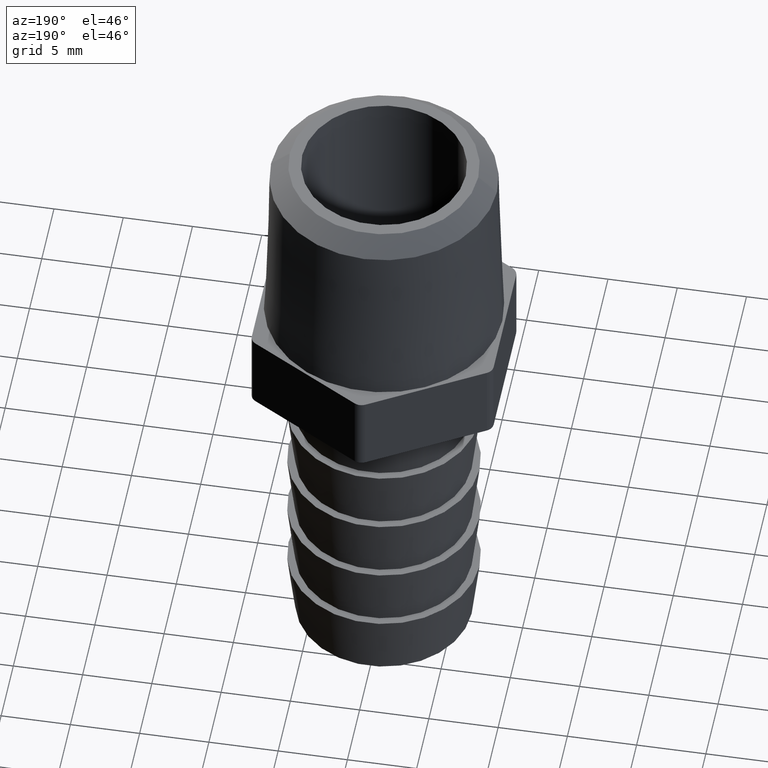
[diagram: clean part render]
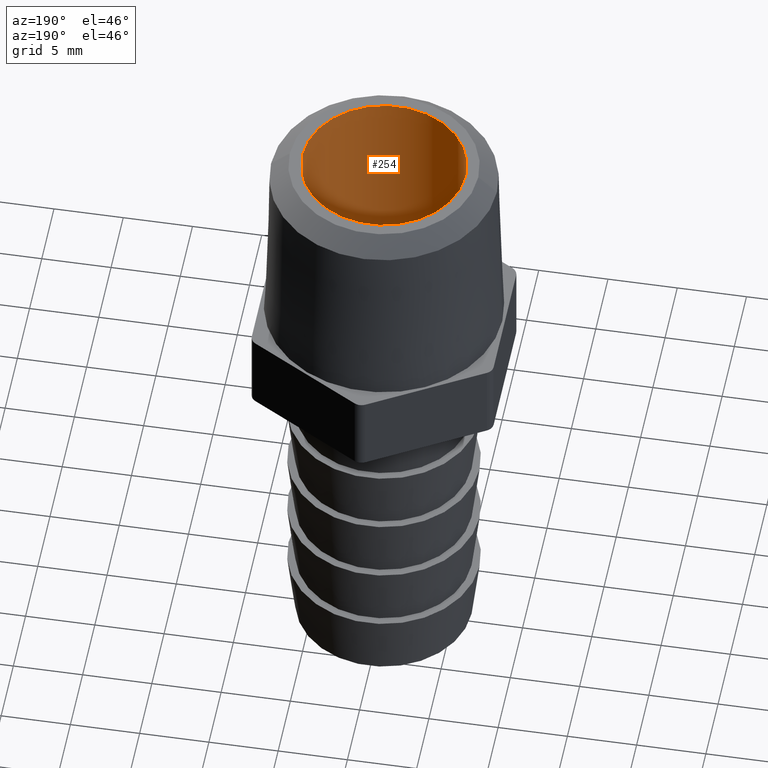
[diagram: same view with one face highlighted and labeled with its STEP entity id]
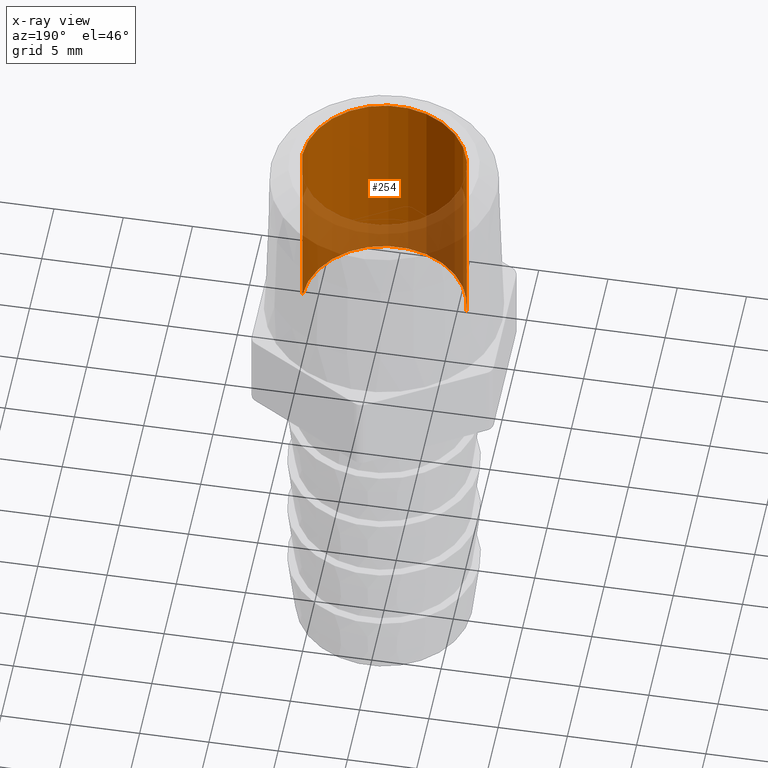
[diagram: x-ray of the same camera — body ghosted, the highlighted face saturated]
A machine part, auxiliary view. The second image highlights one B-rep face of the part: STEP entity #254.
The next image is the same camera in x-ray: the body ghosted, the highlighted face saturated — about 33% of this face is hidden behind the body in this view.
In plain terms, the highlighted cylindrical surface (partial cylindrical patch) has radius 5.9055 mm, axis along (-0, -0, 1).
Its self-contained STEP definition (entity closure, byte-faithful):
#28 = AXIS2_PLACEMENT_3D ( 'NONE', #1160, #626, #80 ) ;
#54 = CYLINDRICAL_SURFACE ( 'NONE', #677, 0.2325000000000000100 ) ;
#80 = DIRECTION ( 'NONE',  ( 1.000000000000000000, 0.0000000000000000000, 0.0000000000000000000 ) ) ;
#83 = FACE_OUTER_BOUND ( 'NONE', #288, .T. ) ;
#93 = ORIENTED_EDGE ( 'NONE', *, *, #258, .T. ) ;
#96 = CARTESIAN_POINT ( 'NONE',  ( -0.2325000000000000100, 2.847303808017596700E-017, 0.1159999999999999400 ) ) ;
#108 = CARTESIAN_POINT ( 'NONE',  ( 0.2325000000000000100, 0.0000000000000000000, -0.5416093065034893700 ) ) ;
#215 = CARTESIAN_POINT ( 'NONE',  ( 0.2325000000000000100, 0.0000000000000000000, 0.6819999999999999400 ) ) ;
#234 = VECTOR ( 'NONE', #392, 39.37007874015748100 ) ;
#248 = CIRCLE ( 'NONE', #28, 0.2325000000000000100 ) ;
#254 = ADVANCED_FACE ( 'NONE', ( #83 ), #54, .F. ) ;
#258 = EDGE_CURVE ( 'NONE', #401, #696, #298, .T. ) ;
#288 = EDGE_LOOP ( 'NONE', ( #93, #730, #937, #601 ) ) ;
#294 = DIRECTION ( 'NONE',  ( -0.0000000000000000000, -0.0000000000000000000, 1.000000000000000000 ) ) ;
#297 = CARTESIAN_POINT ( 'NONE',  ( 0.0000000000000000000, 0.0000000000000000000, 0.1159999999999999400 ) ) ;
#298 = CIRCLE ( 'NONE', #733, 0.2325000000000000100 ) ;
#321 = EDGE_CURVE ( 'NONE', #696, #1059, #724, .T. ) ;
#363 = VERTEX_POINT ( 'NONE', #215 ) ;
#380 = DIRECTION ( 'NONE',  ( -0.0000000000000000000, -0.0000000000000000000, 1.000000000000000000 ) ) ;
#386 = DIRECTION ( 'NONE',  ( 1.000000000000000000, 0.0000000000000000000, 0.0000000000000000000 ) ) ;
#392 = DIRECTION ( 'NONE',  ( -0.0000000000000000000, -0.0000000000000000000, 1.000000000000000000 ) ) ;
#401 = VERTEX_POINT ( 'NONE', #858 ) ;
#485 = CARTESIAN_POINT ( 'NONE',  ( -0.2325000000000000100, 2.847303808017596700E-017, -0.5416093065034893700 ) ) ;
#568 = CARTESIAN_POINT ( 'NONE',  ( 0.0000000000000000000, 0.0000000000000000000, -0.5416093065034893700 ) ) ;
#569 = EDGE_CURVE ( 'NONE', #1059, #363, #248, .T. ) ;
#591 = VECTOR ( 'NONE', #380, 39.37007874015748100 ) ;
#601 = ORIENTED_EDGE ( 'NONE', *, *, #767, .F. ) ;
#626 = DIRECTION ( 'NONE',  ( 0.0000000000000000000, 0.0000000000000000000, 1.000000000000000000 ) ) ;
#677 = AXIS2_PLACEMENT_3D ( 'NONE', #568, #294, #1014 ) ;
#696 = VERTEX_POINT ( 'NONE', #96 ) ;
#724 = LINE ( 'NONE', #485, #234 ) ;
#730 = ORIENTED_EDGE ( 'NONE', *, *, #321, .T. ) ;
#733 = AXIS2_PLACEMENT_3D ( 'NONE', #297, #933, #386 ) ;
#767 = EDGE_CURVE ( 'NONE', #401, #363, #1092, .T. ) ;
#858 = CARTESIAN_POINT ( 'NONE',  ( 0.2325000000000000100, 0.0000000000000000000, 0.1159999999999999400 ) ) ;
#933 = DIRECTION ( 'NONE',  ( -0.0000000000000000000, -0.0000000000000000000, -1.000000000000000000 ) ) ;
#937 = ORIENTED_EDGE ( 'NONE', *, *, #569, .T. ) ;
#1014 = DIRECTION ( 'NONE',  ( 1.000000000000000000, 0.0000000000000000000, 0.0000000000000000000 ) ) ;
#1049 = CARTESIAN_POINT ( 'NONE',  ( -0.2325000000000000100, 2.847303808017596700E-017, 0.6819999999999999400 ) ) ;
#1059 = VERTEX_POINT ( 'NONE', #1049 ) ;
#1092 = LINE ( 'NONE', #108, #591 ) ;
#1160 = CARTESIAN_POINT ( 'NONE',  ( 0.0000000000000000000, 0.0000000000000000000, 0.6819999999999999400 ) ) ;